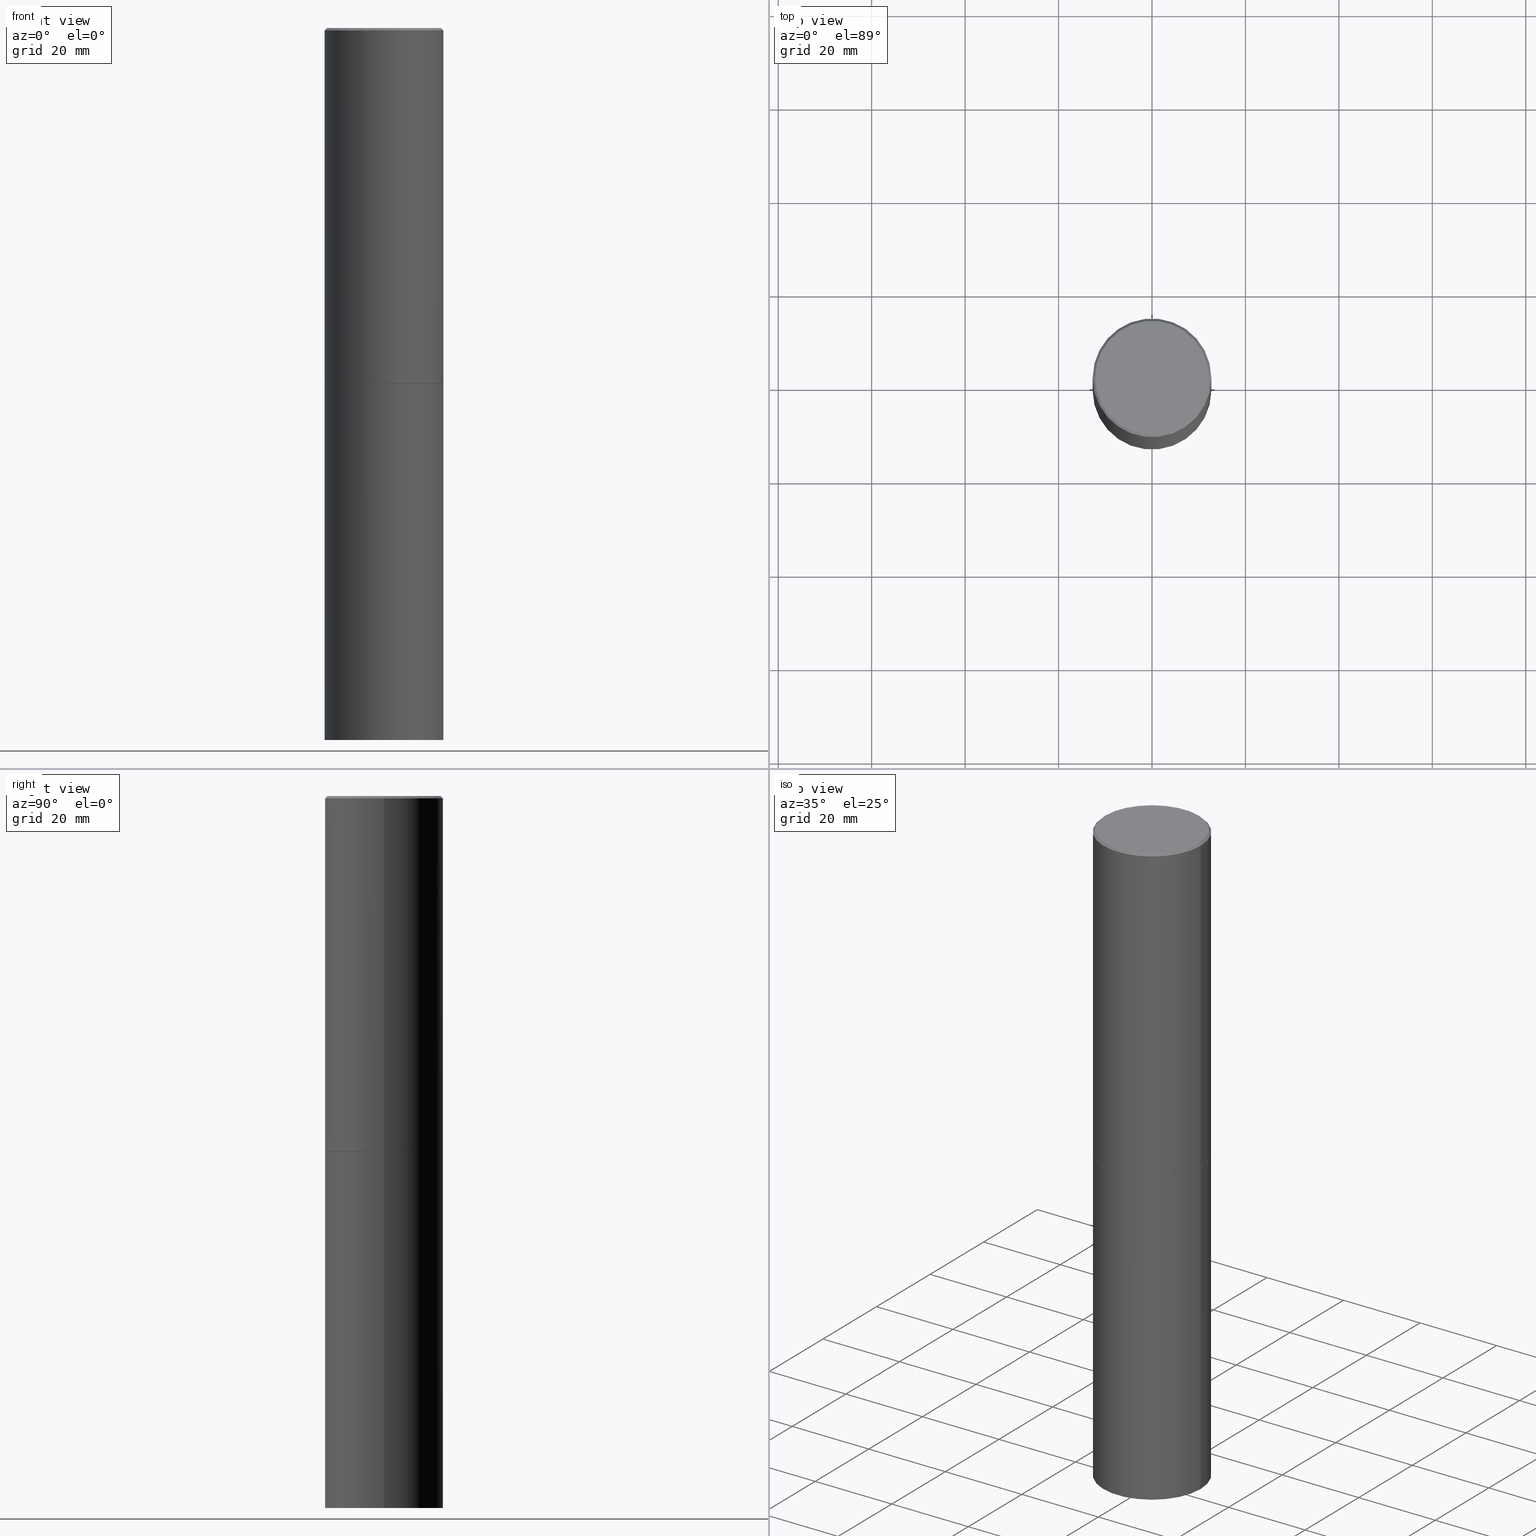
[diagram: canonical four-view strip — front | top / right | iso, engineering-drawing reading convention]
A machine part, canonical four-view strip (front | top / right | iso — engineering-drawing reading convention). The complete STEP part file that produces these views, byte-faithful:
ISO-10303-21;
HEADER;
FILE_DESCRIPTION (( 'STEP AP203' ),
    '1' );
FILE_NAME ('37690.STEP',
    '2024-02-27T22:37:23',
    ( '' ),
    ( '' ),
    'SwSTEP 2.0',
    'SolidWorks 2023',
    '' );
FILE_SCHEMA (( 'CONFIG_CONTROL_DESIGN' ));
ENDSEC;

DATA;
#1 = PERSON_AND_ORGANIZATION_ROLE ( 'creator' ) ;
#2 = ADVANCED_FACE ( 'NONE', ( #283 ), #305, .T. ) ;
#3 = ORIENTED_EDGE ( 'NONE', *, *, #300, .T. ) ;
#4 = VECTOR ( 'NONE', #122, 39.37007874015748143 ) ;
#5 = COORDINATED_UNIVERSAL_TIME_OFFSET ( 5, 0, .BEHIND. ) ;
#6 = CARTESIAN_POINT ( 'NONE',  ( -0.5000000000000000000, -1.717677402183225026E-15, -2.999000000000000554 ) ) ;
#7 = CARTESIAN_POINT ( 'NONE',  ( 7.336406418555409790E-29, -1.047444401652943635E-14, -3.000000000000000444 ) ) ;
#8 = FACE_OUTER_BOUND ( 'NONE', #22, .T. ) ;
#9 = CARTESIAN_POINT ( 'NONE',  ( 7.333960949749226429E-29, -1.047095253519059492E-14, -2.999000000000000554 ) ) ;
#10 = ADVANCED_FACE ( 'NONE', ( #124 ), #153, .T. ) ;
#11 = CARTESIAN_POINT ( 'NONE',  ( 7.333960949749226429E-29, -1.047095253519059492E-14, -2.999000000000000554 ) ) ;
#12 = DIRECTION ( 'NONE',  ( -2.445468806185136877E-29, 3.491481338843145188E-15, 1.000000000000000000 ) ) ;
#13 = EDGE_CURVE ( 'NONE', #106, #57, #53, .T. ) ;
#14 = SECURITY_CLASSIFICATION ( '', '', #279 ) ;
#15 = AXIS2_PLACEMENT_3D ( 'NONE', #7, #238, #36 ) ;
#16 = CARTESIAN_POINT ( 'NONE',  ( 4.890937612370299433E-31, -6.982962677686328587E-17, -0.02000000000000010797 ) ) ;
#17 = ORIENTED_EDGE ( 'NONE', *, *, #196, .F. ) ;
#18 = DIRECTION ( 'NONE',  ( -2.445468806185136597E-29, 3.491481338843145583E-15, 1.000000000000000000 ) ) ;
#19 = ORIENTED_EDGE ( 'NONE', *, *, #55, .F. ) ;
#20 = CONICAL_SURFACE ( 'NONE', #293, 0.4989999999999999991, 0.7853981633975507526 ) ;
#21 = APPLICATION_PROTOCOL_DEFINITION ( 'international standard', 'config_control_design', 1994, #72 ) ;
#22 = EDGE_LOOP ( 'NONE', ( #310, #163, #74, #138 ) ) ;
#23 = PERSON_AND_ORGANIZATION ( #334, #146 ) ;
#24 = EDGE_LOOP ( 'NONE', ( #3, #48, #229, #282 ) ) ;
#25 = CC_DESIGN_PERSON_AND_ORGANIZATION_ASSIGNMENT ( #329, #78, ( #93 ) ) ;
#26 = ORIENTED_EDGE ( 'NONE', *, *, #353, .F. ) ;
#27 = CC_DESIGN_SECURITY_CLASSIFICATION ( #14, ( #68 ) ) ;
#28 = APPROVAL_DATE_TIME ( #175, #268 ) ;
#29 = CARTESIAN_POINT ( 'NONE',  ( -0.5000000000000000000, -1.215895234599365439E-14, -6.000000000000000888 ) ) ;
#30 = DIRECTION ( 'NONE',  ( -2.445468806185136597E-29, 3.491481338843145583E-15, 1.000000000000000000 ) ) ;
#31 = DIRECTION ( 'NONE',  ( 1.000000000000000000, -6.982962677686262766E-15, 0.000000000000000000 ) ) ;
#32 = CONICAL_SURFACE ( 'NONE', #240, 0.4989999999999999991, 0.7853981633975507526 ) ;
#33 = CARTESIAN_POINT ( 'NONE',  ( 7.336406418555409790E-29, -1.047444401652943635E-14, -3.000000000000000444 ) ) ;
#34 = DIRECTION ( 'NONE',  ( -2.445468806185136597E-29, 3.491481338843145583E-15, 1.000000000000000000 ) ) ;
#35 = EDGE_CURVE ( 'NONE', #325, #143, #69, .T. ) ;
#36 = DIRECTION ( 'NONE',  ( 1.000000000000000000, -6.982962677686266711E-15, 0.000000000000000000 ) ) ;
#37 = DIRECTION ( 'NONE',  ( 1.000000000000000000, -6.982962677686266711E-15, 0.000000000000000000 ) ) ;
#38 = CIRCLE ( 'NONE', #123, 0.4799999999999995937 ) ;
#39 = EDGE_CURVE ( 'NONE', #52, #143, #84, .T. ) ;
#40 = DIRECTION ( 'NONE',  ( 1.000000000000000000, -6.982962677686266711E-15, 4.876176775795935793E-29 ) ) ;
#41 = PLANE ( 'NONE',  #278 ) ;
#42 = APPROVAL_PERSON_ORGANIZATION ( #121, #268, #142 ) ;
#43 = APPROVAL_ROLE ( '' ) ;
#44 = ORIENTED_EDGE ( 'NONE', *, *, #196, .T. ) ;
#45 =( CONVERSION_BASED_UNIT ( 'INCH', #219 ) LENGTH_UNIT ( ) NAMED_UNIT ( #166 ) );
#46 = ORIENTED_EDGE ( 'NONE', *, *, #105, .T. ) ;
#47 = DATE_AND_TIME ( #301, #211 ) ;
#48 = ORIENTED_EDGE ( 'NONE', *, *, #13, .T. ) ;
#49 = VECTOR ( 'NONE', #177, 39.37007874015748143 ) ;
#50 = EDGE_CURVE ( 'NONE', #298, #57, #63, .T. ) ;
#51 = CONICAL_SURFACE ( 'NONE', #70, 0.4999999999999996114, 0.7853981633974450594 ) ;
#52 = VERTEX_POINT ( 'NONE', #29 ) ;
#53 = LINE ( 'NONE', #58, #139 ) ;
#54 = ORIENTED_EDGE ( 'NONE', *, *, #73, .F. ) ;
#55 = EDGE_CURVE ( 'NONE', #333, #201, #303, .T. ) ;
#56 = AXIS2_PLACEMENT_3D ( 'NONE', #356, #277, #324 ) ;
#57 = VERTEX_POINT ( 'NONE', #254 ) ;
#58 = CARTESIAN_POINT ( 'NONE',  ( -0.4999999999999997780, 3.552713678800499352E-15, -2.459467545127452050E-29 ) ) ;
#59 = CARTESIAN_POINT ( 'NONE',  ( 0.4799999999999995937, -3.396558832296479338E-15, 1.280553747032483033E-17 ) ) ;
#60 = CC_DESIGN_PERSON_AND_ORGANIZATION_ASSIGNMENT ( #91, #252, ( #68 ) ) ;
#61 = CIRCLE ( 'NONE', #116, 0.5000000000000000000 ) ;
#62 = CARTESIAN_POINT ( 'NONE',  ( -0.4989999999999999991, -6.928835765086536432E-15, -3.000000000000000444 ) ) ;
#63 = CIRCLE ( 'NONE', #182, 0.4999999999999996114 ) ;
#64 = DIRECTION ( 'NONE',  ( -2.445468806185136597E-29, 3.491481338843145583E-15, 1.000000000000000000 ) ) ;
#65 = PLANE ( 'NONE',  #339 ) ;
#66 = ADVANCED_FACE ( 'NONE', ( #176 ), #148, .T. ) ;
#67 = CARTESIAN_POINT ( 'NONE',  ( 0.5000000000000000000, -3.491481338843133355E-15, 2.438088387897967896E-29 ) ) ;
#68 = PRODUCT_DEFINITION_FORMATION_WITH_SPECIFIED_SOURCE ( 'ANY', '', #299, .NOT_KNOWN. ) ;
#69 = CIRCLE ( 'NONE', #168, 0.5000000000000000000 ) ;
#70 = AXIS2_PLACEMENT_3D ( 'NONE', #186, #191, #291 ) ;
#71 = DIRECTION ( 'NONE',  ( 1.000000000000000000, -6.982962677686265133E-15, 0.000000000000000000 ) ) ;
#72 = APPLICATION_CONTEXT ( 'configuration controlled 3d designs of mechanical parts and assemblies' ) ;
#73 = EDGE_CURVE ( 'NONE', #52, #199, #241, .T. ) ;
#74 = ORIENTED_EDGE ( 'NONE', *, *, #35, .F. ) ;
#75 = ORIENTED_EDGE ( 'NONE', *, *, #13, .F. ) ;
#76 = DIRECTION ( 'NONE',  ( 1.000000000000000000, -6.982962677686266711E-15, 4.876176775795935793E-29 ) ) ;
#77 = EDGE_LOOP ( 'NONE', ( #207, #338, #352, #275 ) ) ;
#78 = PERSON_AND_ORGANIZATION_ROLE ( 'creator' ) ;
#79 = EDGE_LOOP ( 'NONE', ( #327, #170 ) ) ;
#80 = AXIS2_PLACEMENT_3D ( 'NONE', #134, #112, #103 ) ;
#81 = EDGE_LOOP ( 'NONE', ( #220, #149 ) ) ;
#82 = AXIS2_PLACEMENT_3D ( 'NONE', #87, #30, #31 ) ;
#83 = COORDINATED_UNIVERSAL_TIME_OFFSET ( 5, 0, .BEHIND. ) ;
#84 = LINE ( 'NONE', #180, #49 ) ;
#85 = DIRECTION ( 'NONE',  ( 1.000000000000000000, -6.982962677686266711E-15, 0.000000000000000000 ) ) ;
#86 = AXIS2_PLACEMENT_3D ( 'NONE', #11, #18, #167 ) ;
#87 = CARTESIAN_POINT ( 'NONE',  ( 1.467281283711081958E-28, -2.094888803305887271E-14, -6.000000000000000888 ) ) ;
#88 = LOCAL_TIME ( 17, 37, 23.00000000000000000, #5 ) ;
#89 = AXIS2_PLACEMENT_3D ( 'NONE', #214, #290, #346 ) ;
#90 = CARTESIAN_POINT ( 'NONE',  ( 3.491481338843279295E-15, 0.4999999999999790168, -6.000000000000002665 ) ) ;
#91 = PERSON_AND_ORGANIZATION ( #334, #146 ) ;
#92 = CARTESIAN_POINT ( 'NONE',  ( 0.4989999999999999991, -1.395894239269488369E-14, -3.000000000000000444 ) ) ;
#93 = PRODUCT_DEFINITION ( 'UNKNOWN', '', #68, #363 ) ;
#94 = DIRECTION ( 'NONE',  ( 1.000000000000000000, -6.982962677686265133E-15, 0.000000000000000000 ) ) ;
#95 = LINE ( 'NONE', #62, #206 ) ;
#96 = DIRECTION ( 'NONE',  ( -2.438088387897960049E-29, 3.491481338843145188E-15, 1.000000000000000000 ) ) ;
#97 = CC_DESIGN_PERSON_AND_ORGANIZATION_ASSIGNMENT ( #178, #169, ( #14 ) ) ;
#98 = CARTESIAN_POINT ( 'NONE',  ( -0.5000000000000000000, -1.215895234599365439E-14, -3.000000000000000444 ) ) ;
#99 = VECTOR ( 'NONE', #12, 39.37007874015748143 ) ;
#100 = CARTESIAN_POINT ( 'NONE',  ( 0.4989999999999999991, -1.395894239269488369E-14, -3.000000000000000444 ) ) ;
#101 = AXIS2_PLACEMENT_3D ( 'NONE', #312, #261, #120 ) ;
#102 = EDGE_CURVE ( 'NONE', #331, #57, #366, .T. ) ;
#103 = DIRECTION ( 'NONE',  ( 1.000000000000000000, -6.982962677686266711E-15, 4.876036955247133327E-29 ) ) ;
#104 = ORIENTED_EDGE ( 'NONE', *, *, #110, .T. ) ;
#105 = EDGE_CURVE ( 'NONE', #225, #298, #258, .T. ) ;
#106 = VERTEX_POINT ( 'NONE', #6 ) ;
#107 = ORIENTED_EDGE ( 'NONE', *, *, #50, .T. ) ;
#108 = CC_DESIGN_APPROVAL ( #268, ( #14 ) ) ;
#109 = PERSON_AND_ORGANIZATION ( #334, #146 ) ;
#110 = EDGE_CURVE ( 'NONE', #201, #225, #341, .T. ) ;
#111 = CC_DESIGN_PERSON_AND_ORGANIZATION_ASSIGNMENT ( #23, #1, ( #68 ) ) ;
#112 = DIRECTION ( 'NONE',  ( -2.445468806185136597E-29, 3.491481338843145583E-15, 1.000000000000000000 ) ) ;
#113 = VERTEX_POINT ( 'NONE', #59 ) ;
#114 = SHAPE_DEFINITION_REPRESENTATION ( #313, #272 ) ;
#115 = DIRECTION ( 'NONE',  ( 1.000000000000000000, -6.982962677686266711E-15, 0.000000000000000000 ) ) ;
#116 = AXIS2_PLACEMENT_3D ( 'NONE', #273, #358, #140 ) ;
#117 = ORIENTED_EDGE ( 'NONE', *, *, #110, .F. ) ;
#118 = MANIFOLD_SOLID_BREP ( 'Body-Move/Copy2[1]', #210 ) ;
#119 = CALENDAR_DATE ( 2024, 27, 2 ) ;
#120 = DIRECTION ( 'NONE',  ( 1.000000000000000000, -6.982962677686265133E-15, 0.000000000000000000 ) ) ;
#121 = PERSON_AND_ORGANIZATION ( #334, #146 ) ;
#122 = DIRECTION ( 'NONE',  ( -2.445468806185136877E-29, 3.491481338843145188E-15, 1.000000000000000000 ) ) ;
#123 = AXIS2_PLACEMENT_3D ( 'NONE', #183, #64, #126 ) ;
#124 = FACE_OUTER_BOUND ( 'NONE', #302, .T. ) ;
#125 = ADVANCED_FACE ( 'NONE', ( #8 ), #129, .T. ) ;
#126 = DIRECTION ( 'NONE',  ( 1.000000000000000000, -6.982962677686266711E-15, 4.876036955247133327E-29 ) ) ;
#127 = FACE_OUTER_BOUND ( 'NONE', #81, .T. ) ;
#128 = EDGE_CURVE ( 'NONE', #199, #325, #320, .T. ) ;
#129 = CYLINDRICAL_SURFACE ( 'NONE', #260, 0.5000000000000000000 ) ;
#130 = CARTESIAN_POINT ( 'NONE',  ( 0.000000000000000000, 0.000000000000000000, 0.000000000000000000 ) ) ;
#131 = DIRECTION ( 'NONE',  ( -2.445468806185136597E-29, 3.491481338843145583E-15, 1.000000000000000000 ) ) ;
#132 = APPROVAL_STATUS ( 'not_yet_approved' ) ;
#133 = APPROVAL ( #249, 'UNSPECIFIED' ) ;
#134 = CARTESIAN_POINT ( 'NONE',  ( -3.131554243005659264E-46, 4.471029511141341874E-32, 1.280553747030123384E-17 ) ) ;
#135 = EDGE_LOOP ( 'NONE', ( #75, #179, #46, #365 ) ) ;
#136 = CARTESIAN_POINT ( 'NONE',  ( -0.4799999999999995937, 3.386736898677836436E-15, 1.280553747027767124E-17 ) ) ;
#137 = AXIS2_PLACEMENT_3D ( 'NONE', #197, #243, #76 ) ;
#138 = ORIENTED_EDGE ( 'NONE', *, *, #128, .F. ) ;
#139 = VECTOR ( 'NONE', #231, 39.37007874015748143 ) ;
#140 = DIRECTION ( 'NONE',  ( 1.000000000000000000, -6.982962677686262766E-15, 0.000000000000000000 ) ) ;
#141 = ORIENTED_EDGE ( 'NONE', *, *, #285, .F. ) ;
#142 = APPROVAL_ROLE ( '' ) ;
#143 = VERTEX_POINT ( 'NONE', #98 ) ;
#144 = EDGE_CURVE ( 'NONE', #113, #298, #267, .T. ) ;
#145 = DIRECTION ( 'NONE',  ( -2.445468806185136597E-29, 3.491481338843145583E-15, 1.000000000000000000 ) ) ;
#146 = ORGANIZATION ( 'UNSPECIFIED', 'UNSPECIFIED', '' ) ;
#147 = CC_DESIGN_PERSON_AND_ORGANIZATION_ASSIGNMENT ( #109, #193, ( #299 ) ) ;
#148 = PLANE ( 'NONE',  #317 ) ;
#149 = ORIENTED_EDGE ( 'NONE', *, *, #212, .T. ) ;
#150 = DIRECTION ( 'NONE',  ( -0.7071067811865452413, 2.468850131082233000E-15, -0.7071067811865497932 ) ) ;
#151 = VECTOR ( 'NONE', #237, 39.37007874015748143 ) ;
#152 = AXIS2_PLACEMENT_3D ( 'NONE', #336, #315, #203 ) ;
#153 = CYLINDRICAL_SURFACE ( 'NONE', #349, 0.5000000000000000000 ) ;
#154 = DIRECTION ( 'NONE',  ( 1.000000000000000000, -6.982962677686265133E-15, 0.000000000000000000 ) ) ;
#155 = CARTESIAN_POINT ( 'NONE',  ( 7.336406418555409790E-29, -1.047444401652943635E-14, -3.000000000000000444 ) ) ;
#156 = FACE_OUTER_BOUND ( 'NONE', #227, .T. ) ;
#157 = CARTESIAN_POINT ( 'NONE',  ( 0.5000000000000000000, -2.444036937190200606E-14, -6.000000000000000888 ) ) ;
#158 = CIRCLE ( 'NONE', #80, 0.4799999999999995937 ) ;
#159 = DATE_TIME_ROLE ( 'creation_date' ) ;
#160 = ADVANCED_FACE ( 'NONE', ( #127 ), #295, .F. ) ;
#161 =( LENGTH_UNIT ( ) NAMED_UNIT ( * ) SI_UNIT ( $, .METRE. ) );
#162 = AXIS2_PLACEMENT_3D ( 'NONE', #16, #226, #192 ) ;
#163 = ORIENTED_EDGE ( 'NONE', *, *, #39, .T. ) ;
#164 = VECTOR ( 'NONE', #150, 39.37007874015748143 ) ;
#165 = CIRCLE ( 'NONE', #15, 0.5000000000000000000 ) ;
#166 = DIMENSIONAL_EXPONENTS ( 1.000000000000000000, 0.000000000000000000, 0.000000000000000000, 0.000000000000000000, 0.000000000000000000, 0.000000000000000000, 0.000000000000000000 ) ;
#167 = DIRECTION ( 'NONE',  ( 1.000000000000000000, -6.982962677686266711E-15, 0.000000000000000000 ) ) ;
#168 = AXIS2_PLACEMENT_3D ( 'NONE', #33, #362, #85 ) ;
#169 = PERSON_AND_ORGANIZATION_ROLE ( 'classification_officer' ) ;
#170 = ORIENTED_EDGE ( 'NONE', *, *, #285, .T. ) ;
#171 = AXIS2_PLACEMENT_3D ( 'NONE', #155, #34, #154 ) ;
#172 = CIRCLE ( 'NONE', #270, 0.5000000000000000000 ) ;
#173 = DIRECTION ( 'NONE',  ( -2.445468806185136597E-29, 3.491481338843145583E-15, 1.000000000000000000 ) ) ;
#174 = ADVANCED_FACE ( 'NONE', ( #264 ), #32, .T. ) ;
#175 = DATE_AND_TIME ( #119, #355 ) ;
#176 = FACE_OUTER_BOUND ( 'NONE', #246, .T. ) ;
#177 = DIRECTION ( 'NONE',  ( -2.445468806185136877E-29, 3.491481338843145188E-15, 1.000000000000000000 ) ) ;
#178 = PERSON_AND_ORGANIZATION ( #334, #146 ) ;
#179 = ORIENTED_EDGE ( 'NONE', *, *, #306, .T. ) ;
#180 = CARTESIAN_POINT ( 'NONE',  ( -0.5000000000000000000, 3.552713678800500929E-15, -2.459467545127452891E-29 ) ) ;
#181 = CC_DESIGN_APPROVAL ( #133, ( #93 ) ) ;
#182 = AXIS2_PLACEMENT_3D ( 'NONE', #204, #173, #115 ) ;
#183 = CARTESIAN_POINT ( 'NONE',  ( -3.131554243005659264E-46, 4.471029511141341874E-32, 1.280553747030123384E-17 ) ) ;
#184 = ADVANCED_FACE ( 'NONE', ( #347 ), #41, .F. ) ;
#185 = CARTESIAN_POINT ( 'NONE',  ( 7.336406418555409790E-29, -1.047444401652943635E-14, -3.000000000000000444 ) ) ;
#186 = CARTESIAN_POINT ( 'NONE',  ( 4.890937612370299433E-31, -6.982962677686328587E-17, -0.02000000000000010797 ) ) ;
#187 = ADVANCED_FACE ( 'NONE', ( #269 ), #213, .T. ) ;
#188 = APPROVAL_PERSON_ORGANIZATION ( #271, #263, #259 ) ;
#189 = DIRECTION ( 'NONE',  ( -2.445468806185136597E-29, 3.491481338843145583E-15, 1.000000000000000000 ) ) ;
#190 = ADVANCED_FACE ( 'NONE', ( #239 ), #20, .T. ) ;
#191 = DIRECTION ( 'NONE',  ( 2.445468806185136597E-29, -3.491481338843145583E-15, -1.000000000000000000 ) ) ;
#192 = DIRECTION ( 'NONE',  ( 1.000000000000000000, -6.982962677686266711E-15, 0.000000000000000000 ) ) ;
#193 = PERSON_AND_ORGANIZATION_ROLE ( 'design_owner' ) ;
#194 = APPROVAL_PERSON_ORGANIZATION ( #304, #133, #43 ) ;
#195 = EDGE_LOOP ( 'NONE', ( #359, #44, #286, #117 ) ) ;
#196 = EDGE_CURVE ( 'NONE', #333, #106, #95, .T. ) ;
#197 = CARTESIAN_POINT ( 'NONE',  ( 0.000000000000000000, 0.000000000000000000, 0.000000000000000000 ) ) ;
#198 = COORDINATED_UNIVERSAL_TIME_OFFSET ( 5, 0, .BEHIND. ) ;
#199 = VERTEX_POINT ( 'NONE', #157 ) ;
#200 = AXIS2_PLACEMENT_3D ( 'NONE', #130, #262, #294 ) ;
#201 = VERTEX_POINT ( 'NONE', #100 ) ;
#202 = DATE_AND_TIME ( #340, #364 ) ;
#203 = DIRECTION ( 'NONE',  ( -1.000000000000000000, 6.982962677686266711E-15, 0.000000000000000000 ) ) ;
#204 = CARTESIAN_POINT ( 'NONE',  ( 4.890937612370299433E-31, -6.982962677686328587E-17, -0.02000000000000010797 ) ) ;
#205 = CARTESIAN_POINT ( 'NONE',  ( 0.000000000000000000, 0.000000000000000000, 0.000000000000000000 ) ) ;
#206 = VECTOR ( 'NONE', #318, 39.37007874015748143 ) ;
#207 = ORIENTED_EDGE ( 'NONE', *, *, #144, .F. ) ;
#208 = DIRECTION ( 'NONE',  ( 0.7071067811866199593, -2.468850131083015945E-15, 0.7071067811864750752 ) ) ;
#209 = DIRECTION ( 'NONE',  ( -1.000000000000000000, 6.982962677686265922E-15, -4.876176775795935793E-29 ) ) ;
#210 = CLOSED_SHELL ( 'NONE', ( #125, #66, #216, #10 ) ) ;
#211 = LOCAL_TIME ( 17, 37, 23.00000000000000000, #198 ) ;
#212 = EDGE_CURVE ( 'NONE', #113, #331, #38, .T. ) ;
#213 = CYLINDRICAL_SURFACE ( 'NONE', #200, 0.4999999999999997780 ) ;
#214 = CARTESIAN_POINT ( 'NONE',  ( 3.351822085289404787E-15, 0.4799999999999995937, -1.669508273909557867E-15 ) ) ;
#215 = CARTESIAN_POINT ( 'NONE',  ( 7.336406418555409790E-29, -1.047444401652943635E-14, -3.000000000000000444 ) ) ;
#216 = ADVANCED_FACE ( 'NONE', ( #218 ), #65, .F. ) ;
#217 = VECTOR ( 'NONE', #208, 39.37007874015748143 ) ;
#218 = FACE_OUTER_BOUND ( 'NONE', #79, .T. ) ;
#219 = LENGTH_MEASURE_WITH_UNIT ( LENGTH_MEASURE( 0.02539999999999999897 ), #161 );
#220 = ORIENTED_EDGE ( 'NONE', *, *, #335, .T. ) ;
#221 = APPLICATION_PROTOCOL_DEFINITION ( 'international standard', 'config_control_design', 1994, #321 ) ;
#222 = ORIENTED_EDGE ( 'NONE', *, *, #128, .T. ) ;
#223 =( NAMED_UNIT ( * ) SI_UNIT ( $, .STERADIAN. ) SOLID_ANGLE_UNIT ( ) );
#224 = APPROVAL_DATE_TIME ( #326, #133 ) ;
#225 = VERTEX_POINT ( 'NONE', #316 ) ;
#226 = DIRECTION ( 'NONE',  ( -2.445468806185136597E-29, 3.491481338843145583E-15, 1.000000000000000000 ) ) ;
#227 = EDGE_LOOP ( 'NONE', ( #309, #244, #107, #288 ) ) ;
#228 = ORIENTED_EDGE ( 'NONE', *, *, #306, .F. ) ;
#229 = ORIENTED_EDGE ( 'NONE', *, *, #50, .F. ) ;
#230 = EDGE_LOOP ( 'NONE', ( #248, #19 ) ) ;
#231 = DIRECTION ( 'NONE',  ( -2.445468806185136877E-29, 3.491481338843145188E-15, 1.000000000000000000 ) ) ;
#232 = CIRCLE ( 'NONE', #162, 0.4999999999999996114 ) ;
#233 = CARTESIAN_POINT ( 'NONE',  ( 0.4999999999999997780, -3.491481338843131778E-15, 2.438088387897966775E-29 ) ) ;
#234 = CARTESIAN_POINT ( 'NONE',  ( 0.000000000000000000, 0.000000000000000000, 0.000000000000000000 ) ) ;
#235 = DIRECTION ( 'NONE',  ( -2.445468806185136597E-29, 3.491481338843145583E-15, 1.000000000000000000 ) ) ;
#236 = MANIFOLD_SOLID_BREP ( 'Body-Move/Copy2[2]', #247 ) ;
#237 = DIRECTION ( 'NONE',  ( 0.7071067811865452413, -7.319954787623248157E-15, -0.7071067811865497932 ) ) ;
#238 = DIRECTION ( 'NONE',  ( -2.445468806185136597E-29, 3.491481338843145583E-15, 1.000000000000000000 ) ) ;
#239 = FACE_OUTER_BOUND ( 'NONE', #276, .T. ) ;
#240 = AXIS2_PLACEMENT_3D ( 'NONE', #215, #189, #71 ) ;
#241 = CIRCLE ( 'NONE', #82, 0.5000000000000000000 ) ;
#242 = CYLINDRICAL_SURFACE ( 'NONE', #137, 0.4999999999999997780 ) ;
#243 = DIRECTION ( 'NONE',  ( -2.445468806185136597E-29, 3.491481338843145583E-15, 1.000000000000000000 ) ) ;
#244 = ORIENTED_EDGE ( 'NONE', *, *, #144, .T. ) ;
#245 = COORDINATED_UNIVERSAL_TIME_OFFSET ( 5, 0, .BEHIND. ) ;
#246 = EDGE_LOOP ( 'NONE', ( #26, #54 ) ) ;
#247 = CLOSED_SHELL ( 'NONE', ( #174, #344, #255, #2, #187, #190, #184, #160 ) ) ;
#248 = ORIENTED_EDGE ( 'NONE', *, *, #287, .F. ) ;
#249 = APPROVAL_STATUS ( 'not_yet_approved' ) ;
#250 = ORIENTED_EDGE ( 'NONE', *, *, #73, .T. ) ;
#251 = UNCERTAINTY_MEASURE_WITH_UNIT (LENGTH_MEASURE( 1.000000000000000082E-05 ), #45, 'distance_accuracy_value', 'NONE');
#252 = PERSON_AND_ORGANIZATION_ROLE ( 'design_supplier' ) ;
#253 = APPROVAL_DATE_TIME ( #202, #263 ) ;
#254 = CARTESIAN_POINT ( 'NONE',  ( -0.4999999999999996114, 3.421651712066267296E-15, -0.02000000000000010797 ) ) ;
#255 = ADVANCED_FACE ( 'NONE', ( #156 ), #51, .T. ) ;
#256 = DIRECTION ( 'NONE',  ( 2.438088387897960049E-29, -3.491481338843145188E-15, -1.000000000000000000 ) ) ;
#257 = CALENDAR_DATE ( 2024, 27, 2 ) ;
#258 = LINE ( 'NONE', #233, #4 ) ;
#259 = APPROVAL_ROLE ( '' ) ;
#260 = AXIS2_PLACEMENT_3D ( 'NONE', #234, #131, #40 ) ;
#261 = DIRECTION ( 'NONE',  ( -2.445468806185136597E-29, 3.491481338843145583E-15, 1.000000000000000000 ) ) ;
#262 = DIRECTION ( 'NONE',  ( -2.445468806185136597E-29, 3.491481338843145583E-15, 1.000000000000000000 ) ) ;
#263 = APPROVAL ( #132, 'UNSPECIFIED' ) ;
#264 = FACE_OUTER_BOUND ( 'NONE', #195, .T. ) ;
#265 = CARTESIAN_POINT ( 'NONE',  ( 0.4999999999999996114, -3.500078625662626318E-15, -0.02000000000000010797 ) ) ;
#266 = LOCAL_TIME ( 17, 37, 23.00000000000000000, #245 ) ;
#267 = LINE ( 'NONE', #345, #151 ) ;
#268 = APPROVAL ( #332, 'UNSPECIFIED' ) ;
#269 = FACE_OUTER_BOUND ( 'NONE', #135, .T. ) ;
#270 = AXIS2_PLACEMENT_3D ( 'NONE', #9, #292, #37 ) ;
#271 = PERSON_AND_ORGANIZATION ( #334, #146 ) ;
#272 = ADVANCED_BREP_SHAPE_REPRESENTATION ( '37690', ( #118, #236, #56 ), #289 ) ;
#273 = CARTESIAN_POINT ( 'NONE',  ( 1.467281283711081958E-28, -2.094888803305887271E-14, -6.000000000000000888 ) ) ;
#274 = FACE_OUTER_BOUND ( 'NONE', #24, .T. ) ;
#275 = ORIENTED_EDGE ( 'NONE', *, *, #360, .T. ) ;
#276 = EDGE_LOOP ( 'NONE', ( #17, #281, #104, #228 ) ) ;
#277 = DIRECTION ( 'NONE',  ( 0.000000000000000000, 0.000000000000000000, 1.000000000000000000 ) ) ;
#278 = AXIS2_PLACEMENT_3D ( 'NONE', #185, #96, #319 ) ;
#279 = SECURITY_CLASSIFICATION_LEVEL ( 'unclassified' ) ;
#280 = CIRCLE ( 'NONE', #171, 0.4989999999999999991 ) ;
#281 = ORIENTED_EDGE ( 'NONE', *, *, #55, .T. ) ;
#282 = ORIENTED_EDGE ( 'NONE', *, *, #105, .F. ) ;
#283 = FACE_OUTER_BOUND ( 'NONE', #77, .T. ) ;
#284 = DIRECTION ( 'NONE',  ( -1.000000000000000000, 6.982962677686265922E-15, -4.876176775795935793E-29 ) ) ;
#285 = EDGE_CURVE ( 'NONE', #143, #325, #165, .T. ) ;
#286 = ORIENTED_EDGE ( 'NONE', *, *, #300, .F. ) ;
#287 = EDGE_CURVE ( 'NONE', #201, #333, #280, .T. ) ;
#288 = ORIENTED_EDGE ( 'NONE', *, *, #102, .F. ) ;
#289 =( GEOMETRIC_REPRESENTATION_CONTEXT ( 3 ) GLOBAL_UNCERTAINTY_ASSIGNED_CONTEXT ( ( #251 ) ) GLOBAL_UNIT_ASSIGNED_CONTEXT ( ( #45, #351, #223 ) ) REPRESENTATION_CONTEXT ( 'NONE', 'WORKASPACE' ) );
#290 = DIRECTION ( 'NONE',  ( 2.438088387897960049E-29, -3.491481338843145188E-15, -1.000000000000000000 ) ) ;
#291 = DIRECTION ( 'NONE',  ( -1.000000000000000000, 6.982962677686266711E-15, 0.000000000000000000 ) ) ;
#292 = DIRECTION ( 'NONE',  ( -2.445468806185136597E-29, 3.491481338843145583E-15, 1.000000000000000000 ) ) ;
#293 = AXIS2_PLACEMENT_3D ( 'NONE', #343, #235, #94 ) ;
#294 = DIRECTION ( 'NONE',  ( 1.000000000000000000, -6.982962677686266711E-15, 4.876176775795935793E-29 ) ) ;
#295 = PLANE ( 'NONE',  #89 ) ;
#296 = CARTESIAN_POINT ( 'NONE',  ( 0.5000000000000000000, -1.396592535537257129E-14, -3.000000000000000444 ) ) ;
#297 = CC_DESIGN_APPROVAL ( #263, ( #68 ) ) ;
#298 = VERTEX_POINT ( 'NONE', #265 ) ;
#299 = PRODUCT ( '37690', '37690', '', ( #330 ) ) ;
#300 = EDGE_CURVE ( 'NONE', #225, #106, #172, .T. ) ;
#301 = CALENDAR_DATE ( 2024, 27, 2 ) ;
#302 = EDGE_LOOP ( 'NONE', ( #357, #250, #222, #141 ) ) ;
#303 = CIRCLE ( 'NONE', #101, 0.4989999999999999991 ) ;
#304 = PERSON_AND_ORGANIZATION ( #334, #146 ) ;
#305 = CONICAL_SURFACE ( 'NONE', #152, 0.4999999999999996114, 0.7853981633974450594 ) ;
#306 = EDGE_CURVE ( 'NONE', #106, #225, #342, .T. ) ;
#307 = DIRECTION ( 'NONE',  ( 1.000000000000000000, -6.982962677686266711E-15, 4.876176775795935793E-29 ) ) ;
#308 = DATE_AND_TIME ( #257, #88 ) ;
#309 = ORIENTED_EDGE ( 'NONE', *, *, #212, .F. ) ;
#310 = ORIENTED_EDGE ( 'NONE', *, *, #353, .T. ) ;
#311 = DATE_TIME_ROLE ( 'classification_date' ) ;
#312 = CARTESIAN_POINT ( 'NONE',  ( 7.336406418555409790E-29, -1.047444401652943635E-14, -3.000000000000000444 ) ) ;
#313 = PRODUCT_DEFINITION_SHAPE ( 'NONE', 'NONE',  #93 ) ;
#314 = CC_DESIGN_DATE_AND_TIME_ASSIGNMENT ( #308, #311, ( #14 ) ) ;
#315 = DIRECTION ( 'NONE',  ( 2.445468806185136597E-29, -3.491481338843145583E-15, -1.000000000000000000 ) ) ;
#316 = CARTESIAN_POINT ( 'NONE',  ( 0.5000000000000000000, -1.396243387403372828E-14, -2.999000000000000554 ) ) ;
#317 = AXIS2_PLACEMENT_3D ( 'NONE', #90, #256, #284 ) ;
#318 = DIRECTION ( 'NONE',  ( -0.7071067811866199593, 7.493145998870616062E-15, 0.7071067811864750752 ) ) ;
#319 = DIRECTION ( 'NONE',  ( 1.000000000000000000, -6.982962677686265922E-15, 4.876176775795935793E-29 ) ) ;
#320 = LINE ( 'NONE', #67, #99 ) ;
#321 = APPLICATION_CONTEXT ( 'configuration controlled 3d designs of mechanical parts and assemblies' ) ;
#322 = DIRECTION ( 'NONE',  ( 2.438088387897960049E-29, -3.491481338843145188E-15, -1.000000000000000000 ) ) ;
#323 = CC_DESIGN_DATE_AND_TIME_ASSIGNMENT ( #47, #159, ( #93 ) ) ;
#324 = DIRECTION ( 'NONE',  ( 1.000000000000000000, 0.000000000000000000, 0.000000000000000000 ) ) ;
#325 = VERTEX_POINT ( 'NONE', #296 ) ;
#326 = DATE_AND_TIME ( #354, #266 ) ;
#327 = ORIENTED_EDGE ( 'NONE', *, *, #35, .T. ) ;
#328 = PRODUCT_RELATED_PRODUCT_CATEGORY ( 'detail', '', ( #299 ) ) ;
#329 = PERSON_AND_ORGANIZATION ( #334, #146 ) ;
#330 = MECHANICAL_CONTEXT ( 'NONE', #321, 'mechanical' ) ;
#331 = VERTEX_POINT ( 'NONE', #136 ) ;
#332 = APPROVAL_STATUS ( 'not_yet_approved' ) ;
#333 = VERTEX_POINT ( 'NONE', #350 ) ;
#334 = PERSON ( 'UNSPECIFIED', 'UNSPECIFIED', 'UNSPECIFIED', ('UNSPECIFIED'), ('UNSPECIFIED'), ('UNSPECIFIED') ) ;
#335 = EDGE_CURVE ( 'NONE', #331, #113, #158, .T. ) ;
#336 = CARTESIAN_POINT ( 'NONE',  ( 4.890937612370299433E-31, -6.982962677686328587E-17, -0.02000000000000010797 ) ) ;
#337 = CARTESIAN_POINT ( 'NONE',  ( -0.4999999999999996114, 3.421651712066267296E-15, -0.02000000000000010797 ) ) ;
#338 = ORIENTED_EDGE ( 'NONE', *, *, #335, .F. ) ;
#339 = AXIS2_PLACEMENT_3D ( 'NONE', #348, #322, #209 ) ;
#340 = CALENDAR_DATE ( 2024, 27, 2 ) ;
#341 = LINE ( 'NONE', #92, #217 ) ;
#342 = CIRCLE ( 'NONE', #86, 0.5000000000000000000 ) ;
#343 = CARTESIAN_POINT ( 'NONE',  ( 7.336406418555409790E-29, -1.047444401652943635E-14, -3.000000000000000444 ) ) ;
#344 = ADVANCED_FACE ( 'NONE', ( #274 ), #242, .T. ) ;
#345 = CARTESIAN_POINT ( 'NONE',  ( 0.4999999999999996114, -3.500078625662626318E-15, -0.02000000000000010797 ) ) ;
#346 = DIRECTION ( 'NONE',  ( -1.000000000000000000, 6.982962677686265922E-15, -4.876176775795935793E-29 ) ) ;
#347 = FACE_OUTER_BOUND ( 'NONE', #230, .T. ) ;
#348 = CARTESIAN_POINT ( 'NONE',  ( 3.491481338843206325E-15, 0.4999999999999895639, -3.000000000000001776 ) ) ;
#349 = AXIS2_PLACEMENT_3D ( 'NONE', #205, #145, #307 ) ;
#350 = CARTESIAN_POINT ( 'NONE',  ( -0.4989999999999999991, -6.923537310738314819E-15, -3.000000000000000444 ) ) ;
#351 =( NAMED_UNIT ( * ) PLANE_ANGLE_UNIT ( ) SI_UNIT ( $, .RADIAN. ) );
#352 = ORIENTED_EDGE ( 'NONE', *, *, #102, .T. ) ;
#353 = EDGE_CURVE ( 'NONE', #199, #52, #61, .T. ) ;
#354 = CALENDAR_DATE ( 2024, 27, 2 ) ;
#355 = LOCAL_TIME ( 17, 37, 23.00000000000000000, #361 ) ;
#356 = CARTESIAN_POINT ( 'NONE',  ( 0.000000000000000000, 0.000000000000000000, 0.000000000000000000 ) ) ;
#357 = ORIENTED_EDGE ( 'NONE', *, *, #39, .F. ) ;
#358 = DIRECTION ( 'NONE',  ( -2.445468806185136597E-29, 3.491481338843145583E-15, 1.000000000000000000 ) ) ;
#359 = ORIENTED_EDGE ( 'NONE', *, *, #287, .T. ) ;
#360 = EDGE_CURVE ( 'NONE', #57, #298, #232, .T. ) ;
#361 = COORDINATED_UNIVERSAL_TIME_OFFSET ( 5, 0, .BEHIND. ) ;
#362 = DIRECTION ( 'NONE',  ( -2.445468806185136597E-29, 3.491481338843145583E-15, 1.000000000000000000 ) ) ;
#363 = DESIGN_CONTEXT ( 'detailed design', #72, 'design' ) ;
#364 = LOCAL_TIME ( 17, 37, 23.00000000000000000, #83 ) ;
#365 = ORIENTED_EDGE ( 'NONE', *, *, #360, .F. ) ;
#366 = LINE ( 'NONE', #337, #164 ) ;
ENDSEC;
END-ISO-10303-21;
